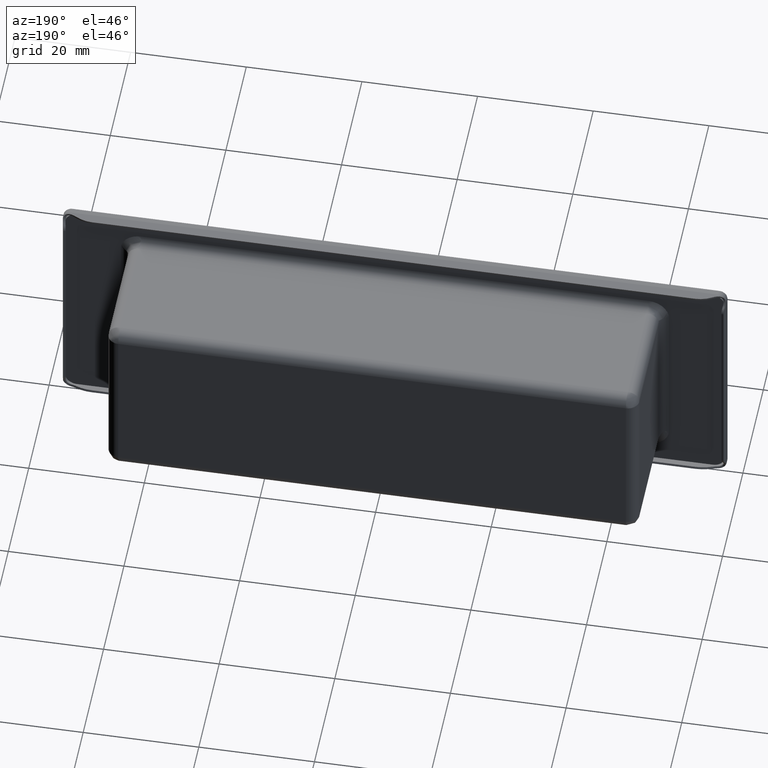
[diagram: clean part render]
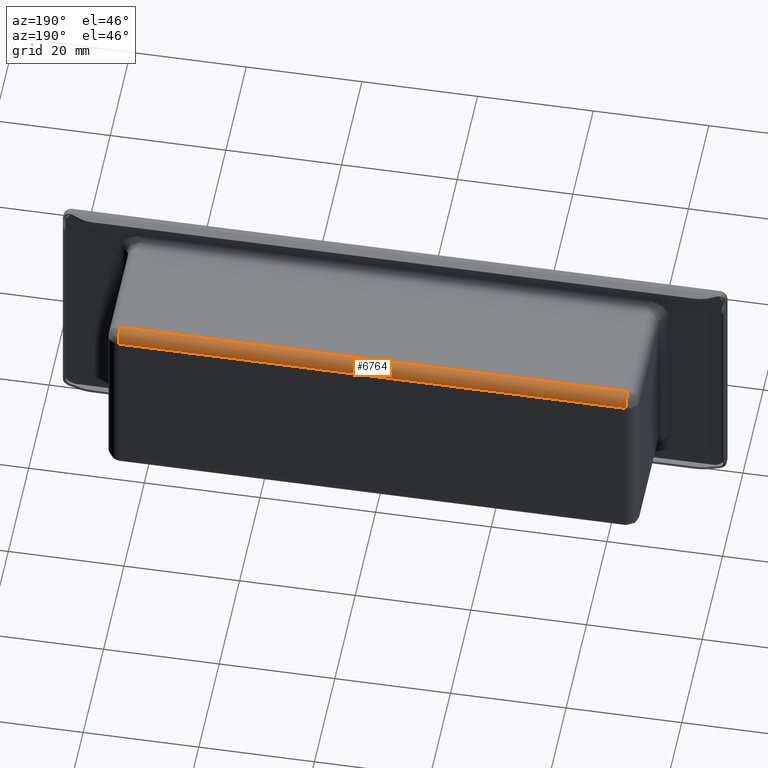
[diagram: same view with one face highlighted and labeled with its STEP entity id]
A machine part, auxiliary view. The second image highlights one B-rep face of the part: STEP entity #6764.
In plain terms, the highlighted face is a freeform B-spline surface patch.
Its self-contained STEP definition (entity closure, byte-faithful):
#5778=CARTESIAN_POINT('',(-43.899999999999999,23.500000000000000,13.899999999999860));
#5779=VERTEX_POINT('',#5778);
#5882=CARTESIAN_POINT('',(43.899999999999999,23.500000000000000,13.899999999999860));
#5883=VERTEX_POINT('',#5882);
#6353=CARTESIAN_POINT('',(-43.899999999999999,23.500000000000000,13.899999999999860));
#6354=CARTESIAN_POINT('',(43.899999999999999,23.500000000000000,13.899999999999860));
#6355=QUASI_UNIFORM_CURVE('',1,(#6353,#6354),.UNSPECIFIED.,.F.,.U.);
#6356=EDGE_CURVE('',#5779,#5883,#6355,.T.);
#6667=CARTESIAN_POINT('',(-43.899999999999999,21.500000000000000,15.900000000000000));
#6668=VERTEX_POINT('',#6667);
#6712=CARTESIAN_POINT('',(-43.899999999999999,21.500000000000000,15.900000000000000));
#6713=CARTESIAN_POINT('',(-43.900000000000027,21.696343653007641,15.900048629318430));
#6714=CARTESIAN_POINT('',(-43.899999999999991,22.121803173187491,15.836957389740050));
#6715=CARTESIAN_POINT('',(-43.900000000000063,22.640866062085919,15.575654472016170));
#6716=CARTESIAN_POINT('',(-43.899999999999842,23.062993524425369,15.183413129031740));
#6717=CARTESIAN_POINT('',(-43.900000000000247,23.399340186892431,14.652449031301231));
#6718=CARTESIAN_POINT('',(-43.899999999999842,23.500361680610059,14.178218853009771));
#6719=CARTESIAN_POINT('',(-43.899999999999999,23.500000000000000,13.899999999999860));
#6720=B_SPLINE_CURVE_WITH_KNOTS('',3,(#6712,#6713,#6714,#6715,#6716,#6717,#6718,#6719),.UNSPECIFIED.,.F.,.U.,(4,1,1,1,1,4),(0.000000245822716,0.589062409937916,1.276336686422414,1.718067132761164,2.307162978441594,3.141671488692805),.UNSPECIFIED.);
#6721=EDGE_CURVE('',#6668,#5779,#6720,.T.);
#6728=CARTESIAN_POINT('',(-46.094999999999992,21.482546929003249,15.899923846128200));
#6729=CARTESIAN_POINT('',(46.149875000000002,21.482546929003249,15.899923846128200));
#6730=CARTESIAN_POINT('',(-46.094999999999999,23.627202684023505,15.918639973358960));
#6731=CARTESIAN_POINT('',(46.149875000000016,23.627202684023505,15.918639973358960));
#6732=CARTESIAN_POINT('',(-46.094999999999992,23.496269596843732,13.777902920930149));
#6733=CARTESIAN_POINT('',(46.149875000000002,23.496269596843732,13.777902920930149));
#6741=(BOUNDED_SURFACE()B_SPLINE_SURFACE(1,2,((#6728,#6730,#6732),(#6729,#6731,#6733)),.UNSPECIFIED.,.F.,.F.,.U.)B_SPLINE_SURFACE_WITH_KNOTS((2,2),(3,3),(0.0,92.244874999999993),(0.0,3.478498999687461),.UNSPECIFIED.)GEOMETRIC_REPRESENTATION_ITEM()RATIONAL_B_SPLINE_SURFACE(((1.0,0.681998360062499,1.0),(1.0,0.681998360062499,1.0)))REPRESENTATION_ITEM('')SURFACE());
#6742=CARTESIAN_POINT('',(43.899999999999999,21.500000000000000,15.900000000000000));
#6743=VERTEX_POINT('',#6742);
#6744=CARTESIAN_POINT('',(43.899999999999999,21.500000000000000,15.900000000000000));
#6745=CARTESIAN_POINT('',(43.900000000000027,21.696356116885330,15.900067478573490));
#6746=CARTESIAN_POINT('',(43.899999999999942,22.089014728584740,15.841730169912680));
#6747=CARTESIAN_POINT('',(43.900000000000063,22.612356675198289,15.594240853474030));
#6748=CARTESIAN_POINT('',(43.900000000000091,23.082513928594310,15.178628737330730));
#6749=CARTESIAN_POINT('',(43.899999999999807,23.417696213812420,14.603579613512959));
#6750=CARTESIAN_POINT('',(43.900000000000183,23.500120668387630,14.129075310509080));
#6751=CARTESIAN_POINT('',(43.899999999999999,23.500000000000000,13.899999999999860));
#6752=B_SPLINE_CURVE_WITH_KNOTS('',3,(#6744,#6745,#6746,#6747,#6748,#6749,#6750,#6751),.UNSPECIFIED.,.F.,.U.,(4,1,1,1,1,4),(0.000000245823625,0.589062409938654,1.178135019086749,1.718067132761415,2.454437800194862,3.141671488692776),.UNSPECIFIED.);
#6753=EDGE_CURVE('',#6743,#5883,#6752,.T.);
#6754=ORIENTED_EDGE('',*,*,#6753,.T.);
#6755=ORIENTED_EDGE('',*,*,#6356,.F.);
#6756=ORIENTED_EDGE('',*,*,#6721,.F.);
#6757=CARTESIAN_POINT('',(43.899999999999999,21.500000000000000,15.900000000000000));
#6758=CARTESIAN_POINT('',(-43.899999999999999,21.500000000000000,15.900000000000000));
#6759=QUASI_UNIFORM_CURVE('',1,(#6757,#6758),.UNSPECIFIED.,.F.,.U.);
#6760=EDGE_CURVE('',#6743,#6668,#6759,.T.);
#6761=ORIENTED_EDGE('',*,*,#6760,.F.);
#6762=EDGE_LOOP('',(#6754,#6755,#6756,#6761));
#6763=FACE_OUTER_BOUND('',#6762,.T.);
#6764=ADVANCED_FACE('',(#6763),#6741,.T.);